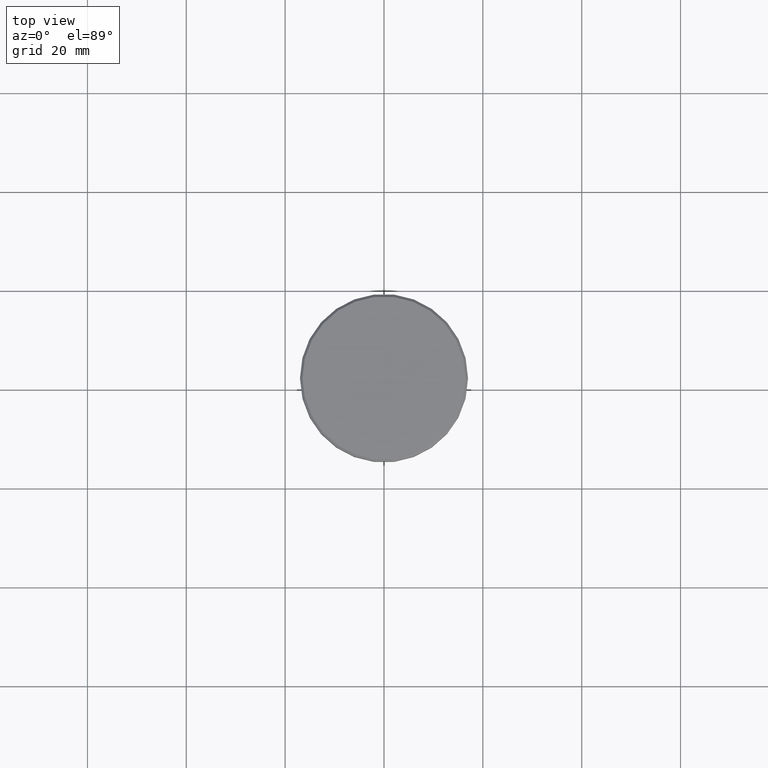
[diagram: clean part render]
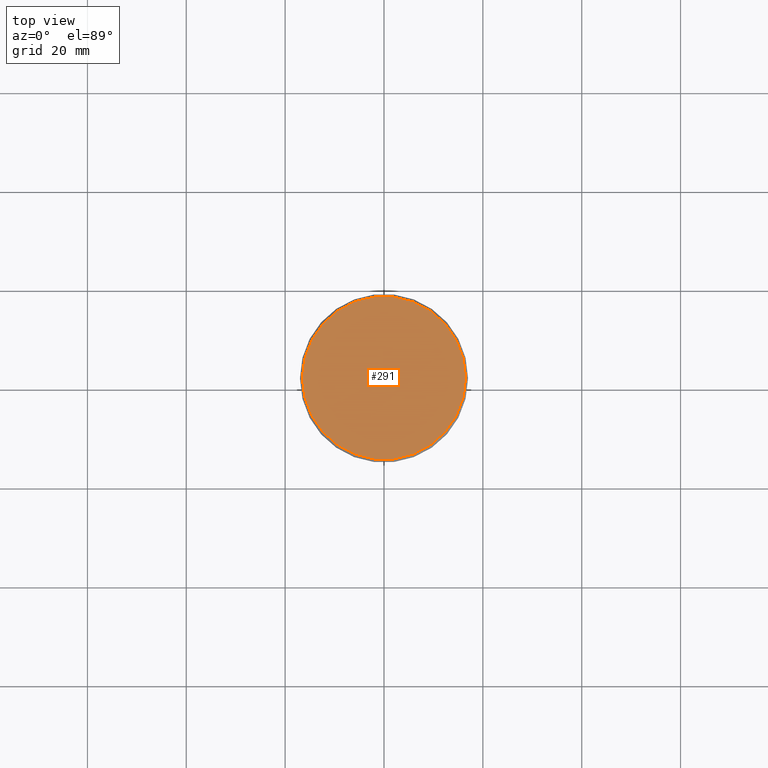
[diagram: same view with one face highlighted and labeled with its STEP entity id]
A machine part, top view. The second image highlights one B-rep face of the part: STEP entity #291.
In plain terms, the highlighted planar face has unit normal (0, -0, 1).
Its self-contained STEP definition (entity closure, byte-faithful):
#15 = DIRECTION ( 'NONE',  ( -0.000000000000000000, -0.000000000000000000, 1.000000000000000000 ) ) ;
#50 = CARTESIAN_POINT ( 'NONE',  ( 0.000000000000000000, 0.000000000000000000, 0.000000000000000000 ) ) ;
#107 = PLANE ( 'NONE',  #830 ) ;
#110 = DIRECTION ( 'NONE',  ( -0.000000000000000000, -0.000000000000000000, 1.000000000000000000 ) ) ;
#111 = VERTEX_POINT ( 'NONE', #1081 ) ;
#219 = ORIENTED_EDGE ( 'NONE', *, *, #780, .T. ) ;
#291 = ADVANCED_FACE ( 'NONE', ( #850 ), #107, .T. ) ;
#301 = DIRECTION ( 'NONE',  ( 0.000000000000000000, -0.000000000000000000, 1.000000000000000000 ) ) ;
#363 = AXIS2_PLACEMENT_3D ( 'NONE', #1108, #15, #656 ) ;
#378 = CARTESIAN_POINT ( 'NONE',  ( -16.49999999999998579, 0.000000000000000000, 0.000000000000000000 ) ) ;
#390 = DIRECTION ( 'NONE',  ( 1.000000000000000000, 0.000000000000000000, 0.000000000000000000 ) ) ;
#410 = CARTESIAN_POINT ( 'NONE',  ( 0.000000000000000000, 0.000000000000000000, 0.000000000000000000 ) ) ;
#591 = CIRCLE ( 'NONE', #363, 16.49999999999998579 ) ;
#656 = DIRECTION ( 'NONE',  ( 1.000000000000000000, 0.000000000000000000, 0.000000000000000000 ) ) ;
#725 = CIRCLE ( 'NONE', #1160, 16.49999999999998579 ) ;
#780 = EDGE_CURVE ( 'NONE', #1007, #111, #591, .T. ) ;
#830 = AXIS2_PLACEMENT_3D ( 'NONE', #50, #301, #390 ) ;
#850 = FACE_OUTER_BOUND ( 'NONE', #1050, .T. ) ;
#1007 = VERTEX_POINT ( 'NONE', #378 ) ;
#1050 = EDGE_LOOP ( 'NONE', ( #219, #1181 ) ) ;
#1081 = CARTESIAN_POINT ( 'NONE',  ( 16.49999999999998579, 2.051283388571816098E-15, 0.000000000000000000 ) ) ;
#1103 = DIRECTION ( 'NONE',  ( 1.000000000000000000, 0.000000000000000000, 0.000000000000000000 ) ) ;
#1108 = CARTESIAN_POINT ( 'NONE',  ( 0.000000000000000000, 0.000000000000000000, 0.000000000000000000 ) ) ;
#1132 = EDGE_CURVE ( 'NONE', #111, #1007, #725, .T. ) ;
#1160 = AXIS2_PLACEMENT_3D ( 'NONE', #410, #110, #1103 ) ;
#1181 = ORIENTED_EDGE ( 'NONE', *, *, #1132, .T. ) ;